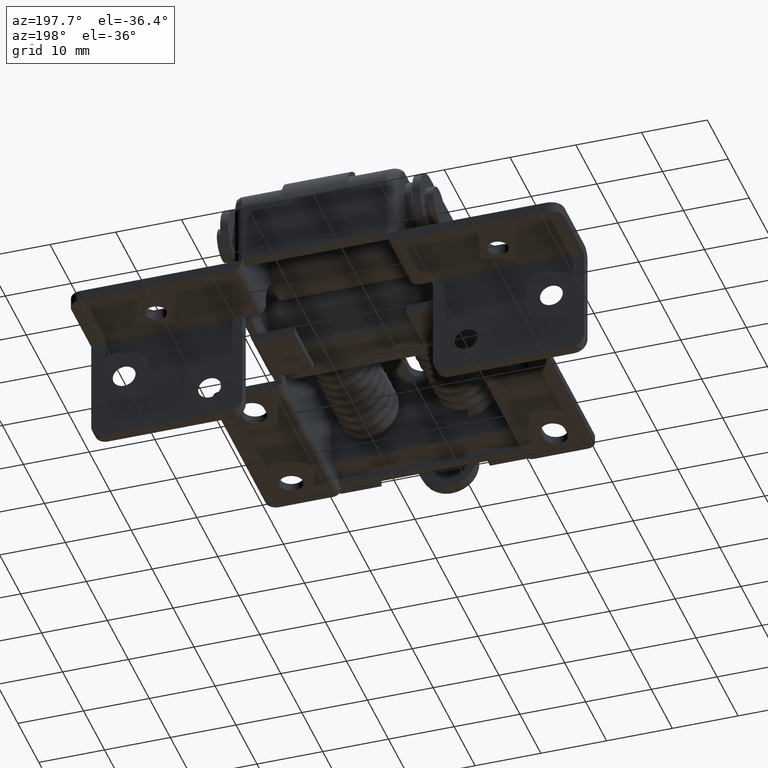
[diagram: clean part render]
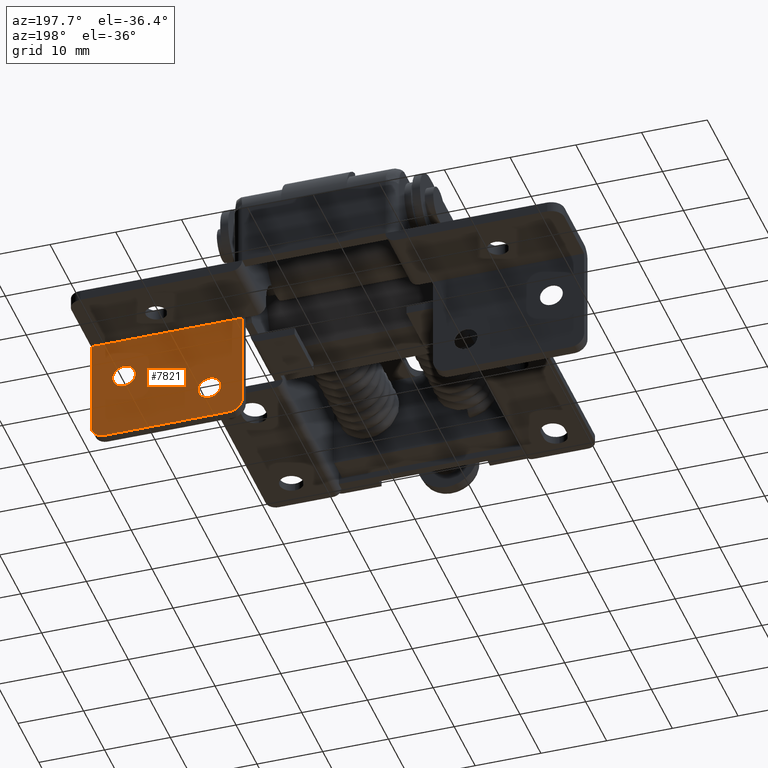
[diagram: same view with one face highlighted and labeled with its STEP entity id]
A machine part, auxiliary view. The second image highlights one B-rep face of the part: STEP entity #7821.
In plain terms, the highlighted planar face has unit normal (0, -1, -0).
Its self-contained STEP definition (entity closure, byte-faithful):
#8 = VERTEX_POINT ( 'NONE', #7583 ) ;
#307 = DIRECTION ( 'NONE',  ( 0.0000000000000000000, 0.0000000000000000000, 1.000000000000000000 ) ) ;
#392 = VERTEX_POINT ( 'NONE', #10841 ) ;
#488 = EDGE_LOOP ( 'NONE', ( #4886, #7944 ) ) ;
#536 = VERTEX_POINT ( 'NONE', #5747 ) ;
#574 = CARTESIAN_POINT ( 'NONE',  ( -19.50000000000000000, -11.40000000000000000, 13.00000000000000200 ) ) ;
#605 = DIRECTION ( 'NONE',  ( -0.0000000000000000000, -1.000000000000000000, -0.0000000000000000000 ) ) ;
#632 = EDGE_CURVE ( 'NONE', #3294, #392, #702, .T. ) ;
#702 = CIRCLE ( 'NONE', #8126, 1.749999999999999800 ) ;
#856 = AXIS2_PLACEMENT_3D ( 'NONE', #4151, #10132, #5010 ) ;
#960 = DIRECTION ( 'NONE',  ( -0.0000000000000000000, -1.000000000000000000, -0.0000000000000000000 ) ) ;
#1009 = VECTOR ( 'NONE', #4080, 1000.000000000000000 ) ;
#1114 = CARTESIAN_POINT ( 'NONE',  ( -37.50000000000000700, -11.40000000000000000, 18.00000000000000700 ) ) ;
#1156 = PLANE ( 'NONE',  #4470 ) ;
#1361 = EDGE_CURVE ( 'NONE', #5655, #6260, #1841, .T. ) ;
#1426 = DIRECTION ( 'NONE',  ( 0.0000000000000000000, 0.0000000000000000000, 1.000000000000000000 ) ) ;
#1503 = AXIS2_PLACEMENT_3D ( 'NONE', #10101, #4981, #10992 ) ;
#1560 = ORIENTED_EDGE ( 'NONE', *, *, #9106, .F. ) ;
#1601 = EDGE_CURVE ( 'NONE', #392, #3294, #4757, .T. ) ;
#1841 = LINE ( 'NONE', #1114, #8385 ) ;
#1879 = FACE_BOUND ( 'NONE', #2810, .T. ) ;
#2145 = AXIS2_PLACEMENT_3D ( 'NONE', #574, #6511, #1426 ) ;
#2169 = DIRECTION ( 'NONE',  ( 0.0000000000000000000, 0.0000000000000000000, 1.000000000000000000 ) ) ;
#2354 = CARTESIAN_POINT ( 'NONE',  ( -14.50000000000000500, -11.40000000000000000, 18.00000000000000700 ) ) ;
#2762 = CARTESIAN_POINT ( 'NONE',  ( -37.50000000000000700, -11.40000000000000000, 16.00000000000000700 ) ) ;
#2810 = EDGE_LOOP ( 'NONE', ( #3649, #10629 ) ) ;
#3039 = VERTEX_POINT ( 'NONE', #6508 ) ;
#3163 = EDGE_CURVE ( 'NONE', #5655, #536, #3272, .T. ) ;
#3272 = LINE ( 'NONE', #5736, #1009 ) ;
#3294 = VERTEX_POINT ( 'NONE', #4489 ) ;
#3325 = VECTOR ( 'NONE', #2169, 1000.000000000000000 ) ;
#3331 = CARTESIAN_POINT ( 'NONE',  ( -19.50000000000000000, -11.40000000000000000, 13.00000000000000200 ) ) ;
#3649 = ORIENTED_EDGE ( 'NONE', *, *, #632, .T. ) ;
#3761 = VECTOR ( 'NONE', #7458, 1000.000000000000000 ) ;
#4080 = DIRECTION ( 'NONE',  ( 1.000000000000000000, 0.0000000000000000000, 0.0000000000000000000 ) ) ;
#4151 = CARTESIAN_POINT ( 'NONE',  ( -35.50000000000000700, -11.40000000000000000, 16.00000000000000700 ) ) ;
#4178 = DIRECTION ( 'NONE',  ( 0.0000000000000000000, 0.0000000000000000000, 1.000000000000000000 ) ) ;
#4470 = AXIS2_PLACEMENT_3D ( 'NONE', #9693, #4567, #10565 ) ;
#4489 = CARTESIAN_POINT ( 'NONE',  ( -19.50000000000000000, -11.40000000000000000, 14.75000000000000200 ) ) ;
#4567 = DIRECTION ( 'NONE',  ( 0.0000000000000000000, -1.000000000000000000, 0.0000000000000000000 ) ) ;
#4757 = CIRCLE ( 'NONE', #2145, 1.749999999999999800 ) ;
#4886 = ORIENTED_EDGE ( 'NONE', *, *, #10186, .T. ) ;
#4981 = DIRECTION ( 'NONE',  ( -0.0000000000000000000, 1.000000000000000000, -0.0000000000000000000 ) ) ;
#5010 = DIRECTION ( 'NONE',  ( 0.0000000000000000000, 0.0000000000000000000, -1.000000000000000000 ) ) ;
#5272 = CIRCLE ( 'NONE', #11027, 1.750000000000003300 ) ;
#5558 = LINE ( 'NONE', #8129, #3325 ) ;
#5623 = ORIENTED_EDGE ( 'NONE', *, *, #8093, .T. ) ;
#5655 = VERTEX_POINT ( 'NONE', #7094 ) ;
#5662 = CARTESIAN_POINT ( 'NONE',  ( -32.50000000000000000, -11.40000000000000000, 8.000000000000000000 ) ) ;
#5736 = CARTESIAN_POINT ( 'NONE',  ( -37.50000000000000700, -11.40000000000000000, 1.600000000000003600 ) ) ;
#5747 = CARTESIAN_POINT ( 'NONE',  ( -14.50000000000000500, -11.40000000000000000, 1.600000000000003600 ) ) ;
#5873 = VERTEX_POINT ( 'NONE', #9102 ) ;
#5968 = AXIS2_PLACEMENT_3D ( 'NONE', #6022, #960, #6906 ) ;
#6022 = CARTESIAN_POINT ( 'NONE',  ( -32.50000000000000000, -11.40000000000000000, 8.000000000000000000 ) ) ;
#6111 = FACE_BOUND ( 'NONE', #488, .T. ) ;
#6260 = VERTEX_POINT ( 'NONE', #2762 ) ;
#6388 = FACE_OUTER_BOUND ( 'NONE', #10494, .T. ) ;
#6406 = EDGE_CURVE ( 'NONE', #8349, #10062, #6558, .T. ) ;
#6508 = CARTESIAN_POINT ( 'NONE',  ( -32.50000000000000000, -11.40000000000000000, 9.750000000000003600 ) ) ;
#6511 = DIRECTION ( 'NONE',  ( -0.0000000000000000000, -1.000000000000000000, -0.0000000000000000000 ) ) ;
#6536 = DIRECTION ( 'NONE',  ( 0.0000000000000000000, 0.0000000000000000000, 1.000000000000000000 ) ) ;
#6558 = LINE ( 'NONE', #2354, #3761 ) ;
#6793 = CIRCLE ( 'NONE', #856, 2.000000000000000000 ) ;
#6906 = DIRECTION ( 'NONE',  ( 0.0000000000000000000, 0.0000000000000000000, 1.000000000000000000 ) ) ;
#7094 = CARTESIAN_POINT ( 'NONE',  ( -37.50000000000000700, -11.39999999999999700, 1.600000000000003600 ) ) ;
#7352 = ORIENTED_EDGE ( 'NONE', *, *, #9516, .T. ) ;
#7431 = CIRCLE ( 'NONE', #5968, 1.750000000000003300 ) ;
#7458 = DIRECTION ( 'NONE',  ( -1.000000000000000000, 0.0000000000000000000, 0.0000000000000000000 ) ) ;
#7583 = CARTESIAN_POINT ( 'NONE',  ( -32.50000000000000000, -11.40000000000000000, 6.249999999999996400 ) ) ;
#7820 = ORIENTED_EDGE ( 'NONE', *, *, #6406, .F. ) ;
#7821 = ADVANCED_FACE ( 'NONE', ( #1879, #6111, #6388 ), #1156, .F. ) ;
#7944 = ORIENTED_EDGE ( 'NONE', *, *, #10536, .T. ) ;
#8093 = EDGE_CURVE ( 'NONE', #6260, #10062, #6793, .T. ) ;
#8114 = ORIENTED_EDGE ( 'NONE', *, *, #3163, .F. ) ;
#8126 = AXIS2_PLACEMENT_3D ( 'NONE', #3331, #9316, #4178 ) ;
#8129 = CARTESIAN_POINT ( 'NONE',  ( -14.50000000000000500, -11.40000000000000000, 18.00000000000000700 ) ) ;
#8349 = VERTEX_POINT ( 'NONE', #8685 ) ;
#8385 = VECTOR ( 'NONE', #307, 1000.000000000000000 ) ;
#8685 = CARTESIAN_POINT ( 'NONE',  ( -16.50000000000000700, -11.40000000000000000, 18.00000000000000700 ) ) ;
#8923 = CARTESIAN_POINT ( 'NONE',  ( -35.50000000000000700, -11.40000000000000000, 18.00000000000000700 ) ) ;
#9102 = CARTESIAN_POINT ( 'NONE',  ( -14.50000000000000500, -11.40000000000000000, 16.00000000000000700 ) ) ;
#9106 = EDGE_CURVE ( 'NONE', #536, #5873, #5558, .T. ) ;
#9316 = DIRECTION ( 'NONE',  ( -0.0000000000000000000, -1.000000000000000000, -0.0000000000000000000 ) ) ;
#9516 = EDGE_CURVE ( 'NONE', #8349, #5873, #10389, .T. ) ;
#9693 = CARTESIAN_POINT ( 'NONE',  ( -14.50000000000000500, -11.40000000000000000, 18.00000000000000700 ) ) ;
#10062 = VERTEX_POINT ( 'NONE', #8923 ) ;
#10101 = CARTESIAN_POINT ( 'NONE',  ( -16.50000000000000700, -11.40000000000000000, 16.00000000000000700 ) ) ;
#10132 = DIRECTION ( 'NONE',  ( -0.0000000000000000000, 1.000000000000000000, -0.0000000000000000000 ) ) ;
#10186 = EDGE_CURVE ( 'NONE', #3039, #8, #5272, .T. ) ;
#10389 = CIRCLE ( 'NONE', #1503, 2.000000000000000000 ) ;
#10494 = EDGE_LOOP ( 'NONE', ( #7820, #7352, #1560, #8114, #10595, #5623 ) ) ;
#10536 = EDGE_CURVE ( 'NONE', #8, #3039, #7431, .T. ) ;
#10565 = DIRECTION ( 'NONE',  ( 0.0000000000000000000, -0.0000000000000000000, -1.000000000000000000 ) ) ;
#10595 = ORIENTED_EDGE ( 'NONE', *, *, #1361, .T. ) ;
#10629 = ORIENTED_EDGE ( 'NONE', *, *, #1601, .T. ) ;
#10841 = CARTESIAN_POINT ( 'NONE',  ( -19.50000000000000000, -11.40000000000000000, 11.25000000000000000 ) ) ;
#10992 = DIRECTION ( 'NONE',  ( 0.0000000000000000000, 0.0000000000000000000, -1.000000000000000000 ) ) ;
#11027 = AXIS2_PLACEMENT_3D ( 'NONE', #5662, #605, #6536 ) ;